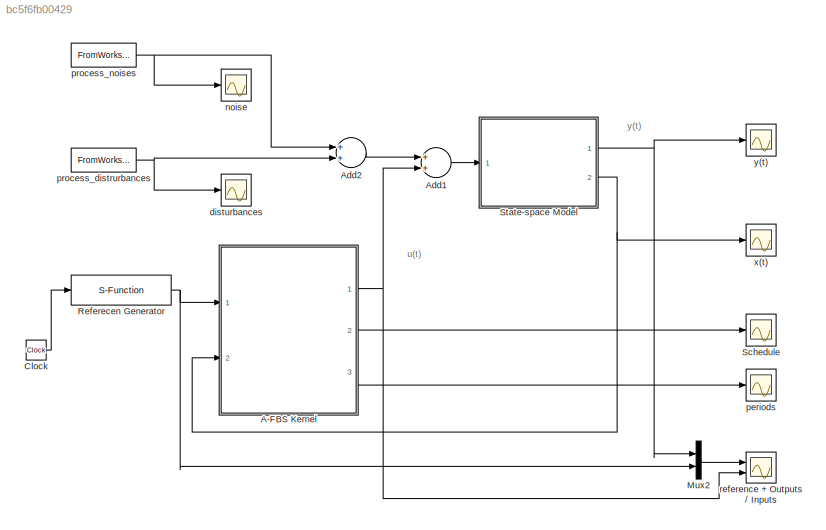
MODEL slx_bc5f6fb00429
KIND model
CONFIG AbsTol = auto
CONFIG FixedStep = auto
CONFIG MaxStep = auto
CONFIG MinStep = auto
CONFIG RelTol = 1e-3
CONFIG SampleTimeConstraint = Unconstrained
CONFIG Solver = ode45
CONFIG SolverMode = SingleTasking
CONFIG SolverName = ode45
CONFIG StartTime = 0.0
CONFIG StopTime = simu.time
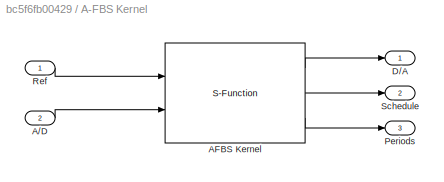
BLOCK [SubSystem] A-FBS Kernel
  Ports = [2, 3]
  RequestExecContextInheritance = off
BLOCK [Inport] A-FBS Kernel/A//D
  IconDisplay = Port number
  Port = 2
BLOCK [S-Function] A-FBS Kernel/AFBS Kernel
  FunctionName = kernel
  Parameters = para
  Ports = [2, 3]
BLOCK [Outport] A-FBS Kernel/D//A
  IconDisplay = Port number
BLOCK [Outport] A-FBS Kernel/Periods
  IconDisplay = Port number
  Port = 3
BLOCK [Inport] A-FBS Kernel/Ref
  IconDisplay = Port number
BLOCK [Outport] A-FBS Kernel/Schedule
  IconDisplay = Port number
  Port = 2
BLOCK [Sum] Add1
  InputSameDT = off
  OutDataTypeStr = Inherit: Inherit via internal rule
  Ports = [2, 1]
  SaturateOnIntegerOverflow = off
BLOCK [Sum] Add2
  InputSameDT = off
  OutDataTypeStr = Inherit: Inherit via internal rule
  Ports = [2, 1]
  SaturateOnIntegerOverflow = off
BLOCK [Clock] Clock
BLOCK [Mux] Mux2
  DisplayOption = bar
  Inputs = 2
  Ports = [2, 1]
BLOCK [S-Function] Referecen Generator
  FunctionName = sfun_reference_cpp
  Ports = [1, 1]
BLOCK [Scope] Schedule
  DataFormat = Structure
  Floating = off
  NumInputPorts = 1
  Ports = [1]
  SampleTime = simu.samlping_time
  SaveName = ScopeData5
  TimeRange = 10
  YMax = -29.6
  YMin = -29.95
  ZoomMode = xonly
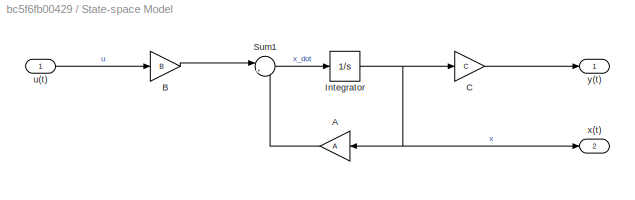
BLOCK [SubSystem] State-space Model
  Ports = [1, 2]
  RequestExecContextInheritance = off
BLOCK [Gain] State-space Model/A
  Gain = A
  Multiplication = Matrix(K*u)
  OutDataTypeStr = Inherit: Inherit via internal rule
  ParamDataTypeStr = Inherit: Inherit via internal rule
  SaturateOnIntegerOverflow = off
BLOCK [Gain] State-space Model/B
  Gain = B
  Multiplication = Matrix(K*u)
  OutDataTypeStr = Inherit: Inherit via internal rule
  ParamDataTypeStr = Inherit: Inherit via internal rule
  SaturateOnIntegerOverflow = off
BLOCK [Gain] State-space Model/C
  Gain = C
  Multiplication = Matrix(K*u)
  OutDataTypeStr = Inherit: Inherit via internal rule
  ParamDataTypeStr = Inherit: Inherit via internal rule
  SaturateOnIntegerOverflow = off
BLOCK [Integrator] State-space Model/Integrator
  Ports = [1, 1]
BLOCK [Sum] State-space Model/Sum1
  IconShape = round
  InputSameDT = off
  Inputs = |++
  OutDataTypeStr = Inherit: Inherit via internal rule
  Ports = [2, 1]
  SaturateOnIntegerOverflow = off
BLOCK [Inport] State-space Model/u(t)
  IconDisplay = Port number
BLOCK [Outport] State-space Model/x(t)
  IconDisplay = Port number
  Port = 2
BLOCK [Outport] State-space Model/y(t)
  IconDisplay = Port number
BLOCK [Scope] disturbances
  DataFormat = Structure
  Floating = off
  NumInputPorts = 1
  Ports = [1]
  SampleTime = simu.sampling_time
  SaveName = ScopeData4
  TimeRange = 10
  YMax = -29.6
  YMin = -29.95
  ZoomMode = xonly
BLOCK [Scope] noise
  DataFormat = Structure
  Floating = off
  NumInputPorts = 1
  Ports = [1]
  SampleTime = simu.samlping_time
  SaveName = ScopeData3
  TimeRange = 10
  YMax = -29.6
  YMin = -29.95
  ZoomMode = xonly
BLOCK [Scope] periods
  DataFormat = Structure
  Floating = off
  NumInputPorts = 1
  Ports = [1]
  SampleTime = simu.samlping_time
  SaveName = ScopeData6
  TimeRange = 10
  YMax = 0.00105
  YMin = 0.00095
  ZoomMode = yonly
BLOCK [FromWorkspace] process_distrurbances
  SampleTime = 0
  VariableName = d_input
  ZeroCross = on
BLOCK [FromWorkspace] process_noises
  SampleTime = 0
  VariableName = noise_input
  ZeroCross = on
BLOCK [Scope] reference + Outputs // Inputs
  DataFormat = Structure
  Floating = off
  NumInputPorts = 2
  Ports = [2]
  SampleTime = simu.samlping_time
  TimeRange = 1.022054868208716
  YMax = 7~0.7000000000000001
  YMin = -1~-0.1
  ZoomMode = xonly
BLOCK [Scope] x(t)
  DataFormat = Structure
  Floating = off
  NumInputPorts = 1
  Ports = [1]
  SampleTime = simu.samlping_time
  SaveName = ScopeData2
  TimeRange = 10
  YMax = 0.00105
  YMin = 0.00095
  ZoomMode = yonly
BLOCK [Scope] y(t)
  DataFormat = Structure
  Floating = off
  LimitDataPoints = off
  NumInputPorts = 1
  Ports = [1]
  SaveName = ScopeData1
  TimeRange = 10
  YMax = 1.75
  YMin = -1.5
  ZoomMode = xonly
ANNOTATION (root): y(t)
ANNOTATION (root): u(t)
LINE A-FBS Kernel/A//D:1 -> A-FBS Kernel/AFBS Kernel:2
LINE A-FBS Kernel/AFBS Kernel:1 -> A-FBS Kernel/D//A:1
LINE A-FBS Kernel/AFBS Kernel:2 -> A-FBS Kernel/Schedule:1
LINE A-FBS Kernel/AFBS Kernel:3 -> A-FBS Kernel/Periods:1
LINE A-FBS Kernel/Ref:1 -> A-FBS Kernel/AFBS Kernel:1
NET A-FBS Kernel:1 -> Add1:2, reference + Outputs // Inputs:2
LINE A-FBS Kernel:2 -> Schedule:1
LINE A-FBS Kernel:3 -> periods:1
LINE Add1:1 -> State-space Model:1
LINE Add2:1 -> Add1:1
LINE Clock:1 -> Referecen Generator:1
LINE Mux2:1 -> reference + Outputs // Inputs:1
NET Referecen Generator:1 -> A-FBS Kernel:1, Mux2:2
LINE State-space Model/A:1 -> State-space Model/Sum1:2
LINE State-space Model/B:1 -> State-space Model/Sum1:1
LINE State-space Model/C:1 -> State-space Model/y(t):1
NET State-space Model/Integrator:1 -> State-space Model/A:1, State-space Model/C:1, State-space Model/x(t):1
LINE State-space Model/Sum1:1 -> State-space Model/Integrator:1
LINE State-space Model/u(t):1 -> State-space Model/B:1
NET State-space Model:1 -> Mux2:1, y(t):1
NET State-space Model:2 -> A-FBS Kernel:2, x(t):1
NET process_distrurbances:1 -> Add2:2, disturbances:1
NET process_noises:1 -> Add2:1, noise:1
note: NET lines group one-source signal fan-out (src -> all destinations, sorted); 1:1 wires keep LINE
